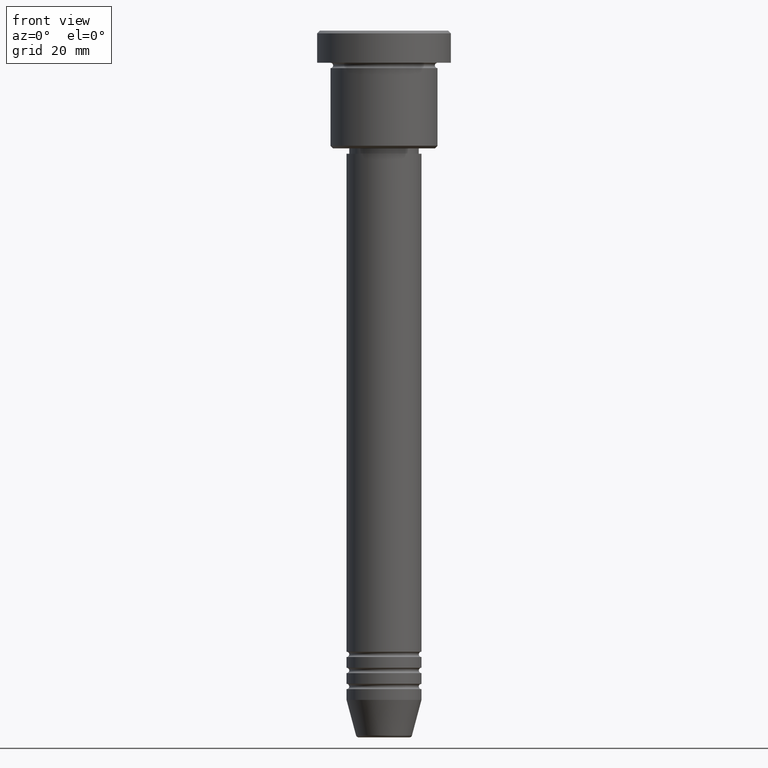
[diagram: clean part render]
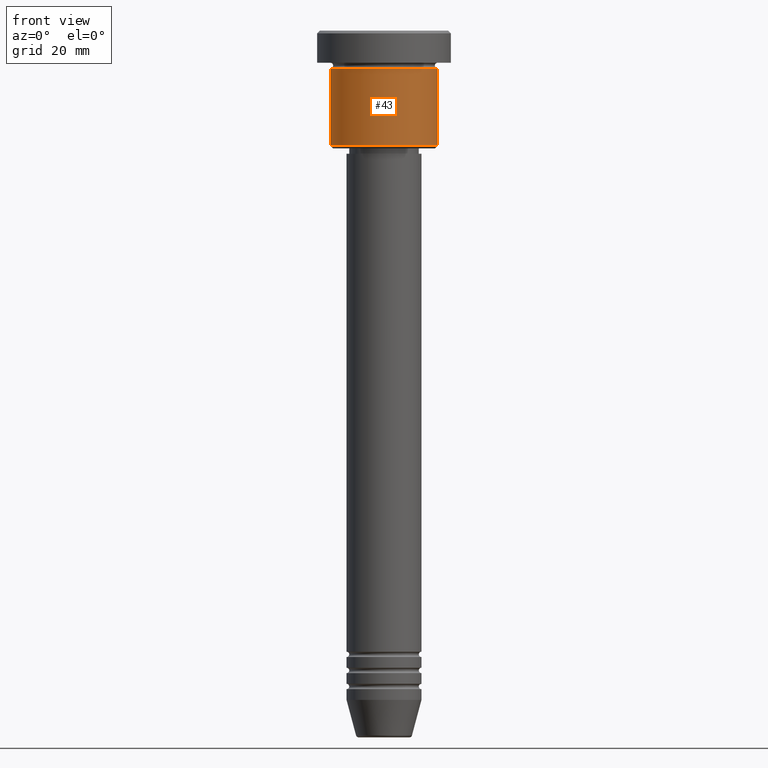
[diagram: same view with one face highlighted and labeled with its STEP entity id]
A machine part, front view. The second image highlights one B-rep face of the part: STEP entity #43.
In plain terms, the highlighted cylindrical surface (partial cylindrical patch) has radius 10 mm, axis along (-0, -0, 1).
Its self-contained STEP definition (entity closure, byte-faithful):
#43 = ADVANCED_FACE ( 'NONE', ( #708 ), #226, .T. ) ;
#105 = EDGE_CURVE ( 'NONE', #540, #169, #1145, .T. ) ;
#147 = DIRECTION ( 'NONE',  ( 1.000000000000000000, 0.000000000000000000, 0.000000000000000000 ) ) ;
#153 = CARTESIAN_POINT ( 'NONE',  ( 0.000000000000000000, 0.000000000000000000, 0.000000000000000000 ) ) ;
#154 = EDGE_CURVE ( 'NONE', #302, #540, #724, .T. ) ;
#156 = ORIENTED_EDGE ( 'NONE', *, *, #343, .F. ) ;
#157 = CARTESIAN_POINT ( 'NONE',  ( 0.000000000000000000, 0.000000000000000000, -6.999999999999996447 ) ) ;
#169 = VERTEX_POINT ( 'NONE', #925 ) ;
#226 = CYLINDRICAL_SURFACE ( 'NONE', #677, 10.00000000000000000 ) ;
#232 = CARTESIAN_POINT ( 'NONE',  ( -10.00000000000000000, 1.224646799147353256E-15, -6.999999999999996447 ) ) ;
#247 = ORIENTED_EDGE ( 'NONE', *, *, #1139, .F. ) ;
#251 = VERTEX_POINT ( 'NONE', #232 ) ;
#261 = CARTESIAN_POINT ( 'NONE',  ( -10.00000000000000000, 1.224646799147353256E-15, -21.50000000000000711 ) ) ;
#267 = ORIENTED_EDGE ( 'NONE', *, *, #154, .T. ) ;
#295 = DIRECTION ( 'NONE',  ( 1.000000000000000000, 0.000000000000000000, 0.000000000000000000 ) ) ;
#299 = CARTESIAN_POINT ( 'NONE',  ( -10.00000000000000000, 1.224646799147353256E-15, 0.000000000000000000 ) ) ;
#302 = VERTEX_POINT ( 'NONE', #261 ) ;
#338 = CIRCLE ( 'NONE', #1120, 10.00000000000000000 ) ;
#343 = EDGE_CURVE ( 'NONE', #302, #251, #463, .T. ) ;
#381 = DIRECTION ( 'NONE',  ( -0.000000000000000000, -0.000000000000000000, 1.000000000000000000 ) ) ;
#443 = VECTOR ( 'NONE', #787, 1000.000000000000000 ) ;
#463 = LINE ( 'NONE', #299, #908 ) ;
#481 = AXIS2_PLACEMENT_3D ( 'NONE', #650, #1108, #738 ) ;
#514 = DIRECTION ( 'NONE',  ( -0.000000000000000000, -0.000000000000000000, 1.000000000000000000 ) ) ;
#540 = VERTEX_POINT ( 'NONE', #1153 ) ;
#645 = DIRECTION ( 'NONE',  ( -0.000000000000000000, -0.000000000000000000, 1.000000000000000000 ) ) ;
#650 = CARTESIAN_POINT ( 'NONE',  ( 0.000000000000000000, 0.000000000000000000, -21.50000000000000711 ) ) ;
#677 = AXIS2_PLACEMENT_3D ( 'NONE', #153, #514, #147 ) ;
#708 = FACE_OUTER_BOUND ( 'NONE', #976, .T. ) ;
#724 = CIRCLE ( 'NONE', #481, 10.00000000000000000 ) ;
#738 = DIRECTION ( 'NONE',  ( -1.000000000000000000, 0.000000000000000000, 0.000000000000000000 ) ) ;
#787 = DIRECTION ( 'NONE',  ( -0.000000000000000000, -0.000000000000000000, 1.000000000000000000 ) ) ;
#908 = VECTOR ( 'NONE', #381, 1000.000000000000000 ) ;
#925 = CARTESIAN_POINT ( 'NONE',  ( 10.00000000000000000, 0.000000000000000000, -6.999999999999996447 ) ) ;
#976 = EDGE_LOOP ( 'NONE', ( #156, #267, #1169, #247 ) ) ;
#1069 = CARTESIAN_POINT ( 'NONE',  ( 10.00000000000000000, 0.000000000000000000, 0.000000000000000000 ) ) ;
#1108 = DIRECTION ( 'NONE',  ( -0.000000000000000000, -0.000000000000000000, 1.000000000000000000 ) ) ;
#1120 = AXIS2_PLACEMENT_3D ( 'NONE', #157, #645, #295 ) ;
#1139 = EDGE_CURVE ( 'NONE', #251, #169, #338, .T. ) ;
#1145 = LINE ( 'NONE', #1069, #443 ) ;
#1153 = CARTESIAN_POINT ( 'NONE',  ( 10.00000000000000000, 0.000000000000000000, -21.50000000000000711 ) ) ;
#1169 = ORIENTED_EDGE ( 'NONE', *, *, #105, .T. ) ;